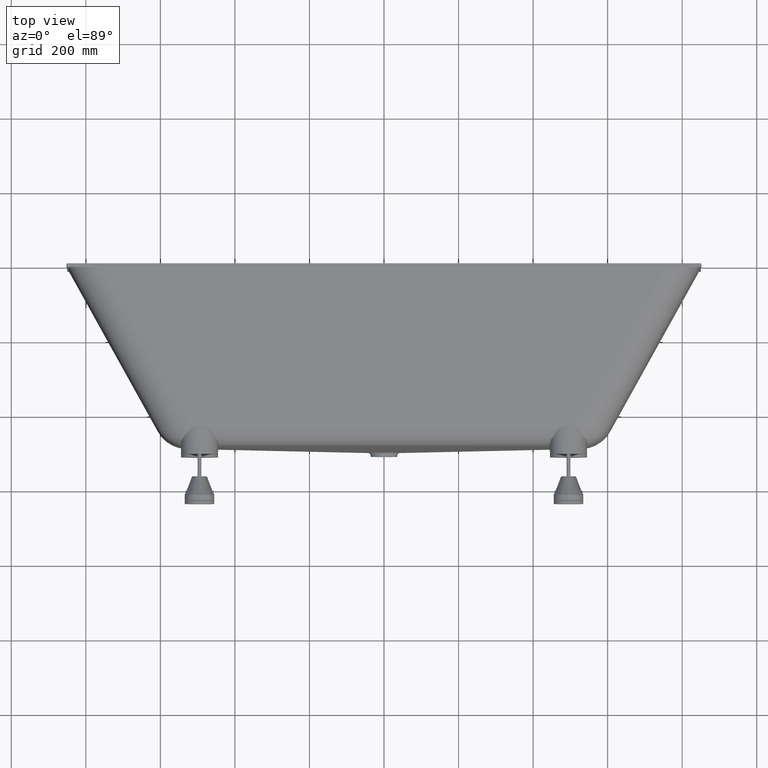
[diagram: clean part render]
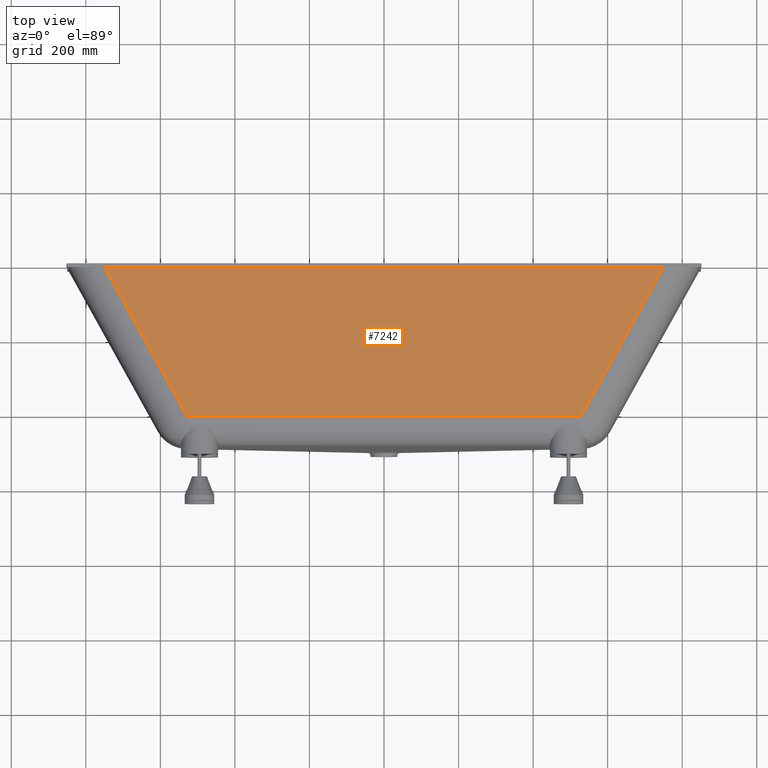
[diagram: same view with one face highlighted and labeled with its STEP entity id]
A machine part, top view. The second image highlights one B-rep face of the part: STEP entity #7242.
In plain terms, the highlighted planar face has unit normal (0, -0.1245, 0.9922).
Its self-contained STEP definition (entity closure, byte-faithful):
#278 = DIRECTION ( 'NONE',  ( 1.000000000000000000, -0.0000000000000000000, -0.0000000000000000000 ) ) ;
#725 = LINE ( 'NONE', #6493, #9601 ) ;
#838 = CARTESIAN_POINT ( 'NONE',  ( 839.9999999999998900, -409.2091107283395700, 318.7133118963186000 ) ) ;
#875 = EDGE_CURVE ( 'NONE', #6978, #1066, #8492, .T. ) ;
#1066 = VERTEX_POINT ( 'NONE', #4306 ) ;
#1091 = AXIS2_PLACEMENT_3D ( 'NONE', #5832, #1498, #1463 ) ;
#1463 = DIRECTION ( 'NONE',  ( -1.000000000000000000, 0.0000000000000000000, 0.0000000000000000000 ) ) ;
#1498 = DIRECTION ( 'NONE',  ( 0.0000000000000000000, -0.1245456747593288700, 0.9922138755826506200 ) ) ;
#1696 = FACE_OUTER_BOUND ( 'NONE', #9369, .T. ) ;
#3068 = CARTESIAN_POINT ( 'NONE',  ( -754.7426625564265800, 0.0000000000000000000, 370.0784722387882100 ) ) ;
#3239 = VECTOR ( 'NONE', #278, 1000.000000000000000 ) ;
#3284 = CARTESIAN_POINT ( 'NONE',  ( 754.7426625564264700, 0.0000000000000000000, 370.0784722387880900 ) ) ;
#3465 = ORIENTED_EDGE ( 'NONE', *, *, #9893, .T. ) ;
#3522 = VECTOR ( 'NONE', #7599, 1000.000000000000000 ) ;
#3877 = VERTEX_POINT ( 'NONE', #3284 ) ;
#4131 = ORIENTED_EDGE ( 'NONE', *, *, #875, .T. ) ;
#4170 = LINE ( 'NONE', #10738, #5778 ) ;
#4306 = CARTESIAN_POINT ( 'NONE',  ( 527.8798710438532000, -409.2091107283395700, 318.7133118963186000 ) ) ;
#5003 = EDGE_CURVE ( 'NONE', #10243, #3877, #4170, .T. ) ;
#5610 = PLANE ( 'NONE',  #1091 ) ;
#5776 = LINE ( 'NONE', #7797, #3522 ) ;
#5778 = VECTOR ( 'NONE', #10716, 1000.000000000000000 ) ;
#5832 = CARTESIAN_POINT ( 'NONE',  ( 839.9999999999998900, -1.245456747593288500, 369.9221387558266100 ) ) ;
#6483 = DIRECTION ( 'NONE',  ( 0.4819703650835167600, 0.8693654132449849500, 0.1091253656792871000 ) ) ;
#6493 = CARTESIAN_POINT ( 'NONE',  ( 736.1489349908500800, -33.53887462771876200, 365.8685716579028600 ) ) ;
#6978 = VERTEX_POINT ( 'NONE', #10705 ) ;
#7242 = ADVANCED_FACE ( 'NONE', ( #1696 ), #5610, .T. ) ;
#7599 = DIRECTION ( 'NONE',  ( 0.4819703650835168700, -0.8693654132449848400, -0.1091253656792871000 ) ) ;
#7797 = CARTESIAN_POINT ( 'NONE',  ( -383.7611463375187100, -669.1666594439166100, 286.0826572458277000 ) ) ;
#8492 = LINE ( 'NONE', #838, #3239 ) ;
#9369 = EDGE_LOOP ( 'NONE', ( #10742, #9378, #4131, #3465 ) ) ;
#9378 = ORIENTED_EDGE ( 'NONE', *, *, #9644, .T. ) ;
#9601 = VECTOR ( 'NONE', #6483, 1000.000000000000200 ) ;
#9644 = EDGE_CURVE ( 'NONE', #10243, #6978, #5776, .T. ) ;
#9893 = EDGE_CURVE ( 'NONE', #1066, #3877, #725, .T. ) ;
#10243 = VERTEX_POINT ( 'NONE', #3068 ) ;
#10705 = CARTESIAN_POINT ( 'NONE',  ( -527.8798710438534300, -409.2091107283395700, 318.7133118963186000 ) ) ;
#10716 = DIRECTION ( 'NONE',  ( 1.000000000000000000, 0.0000000000000000000, 0.0000000000000000000 ) ) ;
#10738 = CARTESIAN_POINT ( 'NONE',  ( 839.9999999999998900, 0.0000000000000000000, 370.0784722387881500 ) ) ;
#10742 = ORIENTED_EDGE ( 'NONE', *, *, #5003, .F. ) ;